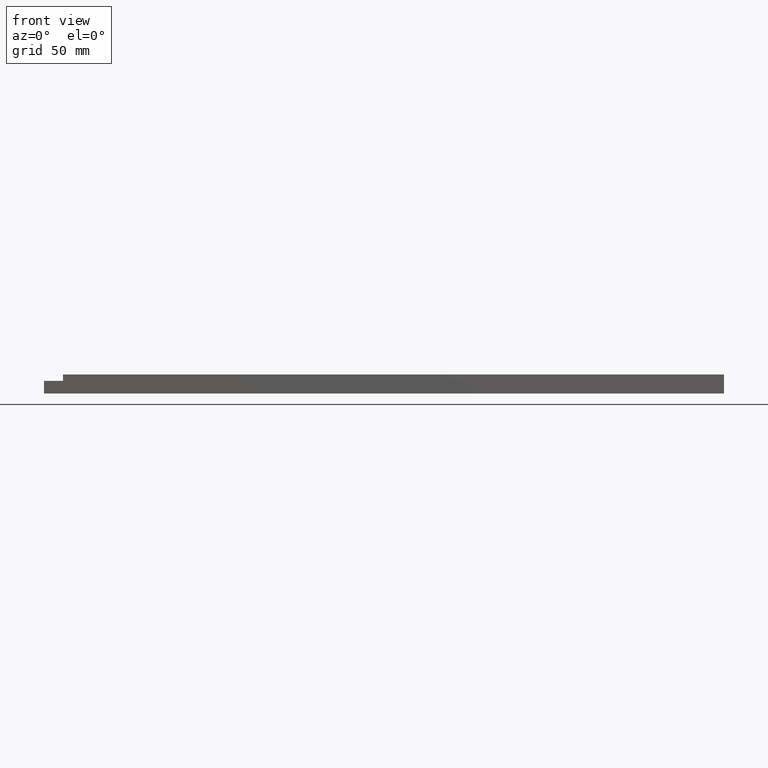
[diagram: clean part render]
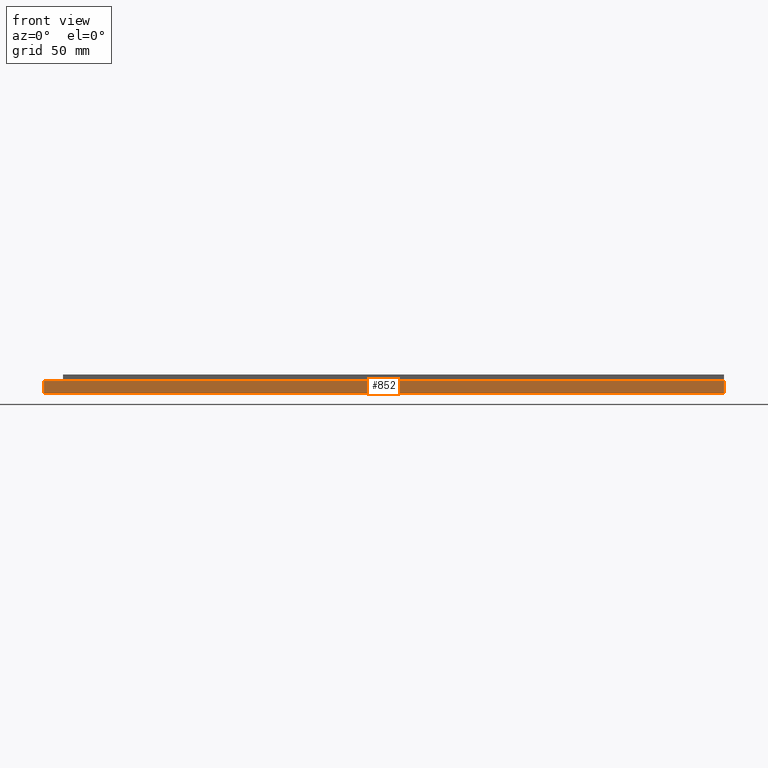
[diagram: same view with one face highlighted and labeled with its STEP entity id]
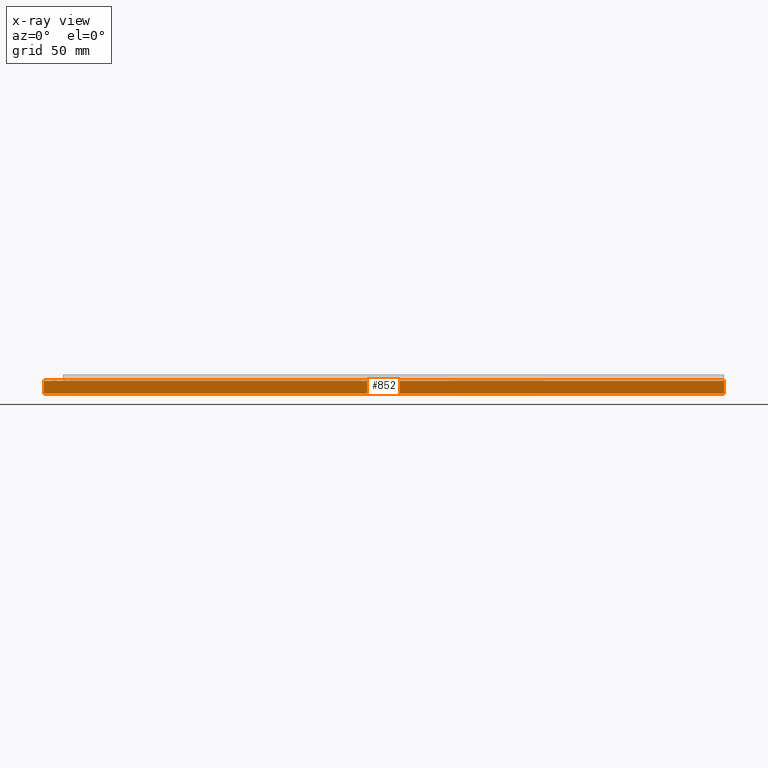
[diagram: x-ray of the same camera — body ghosted, the highlighted face saturated]
A machine part, front view. The second image highlights one B-rep face of the part: STEP entity #852.
The next image is the same camera in x-ray: the body ghosted, the highlighted face saturated — about 0% of this face is hidden behind the body in this view.
In plain terms, the highlighted planar face has unit normal (0, 1, 0).
Its self-contained STEP definition (entity closure, byte-faithful):
#11 = EDGE_CURVE ( 'NONE', #146, #1220, #1095, .T. ) ;
#42 = VECTOR ( 'NONE', #977, 1000.000000000000000 ) ;
#73 = VECTOR ( 'NONE', #549, 1000.000000000000000 ) ;
#87 = ORIENTED_EDGE ( 'NONE', *, *, #514, .T. ) ;
#146 = VERTEX_POINT ( 'NONE', #917 ) ;
#185 = LINE ( 'NONE', #364, #872 ) ;
#191 = EDGE_LOOP ( 'NONE', ( #450, #834, #679, #87 ) ) ;
#258 = DIRECTION ( 'NONE',  ( 0.0000000000000000000, -0.0000000000000000000, 1.000000000000000000 ) ) ;
#304 = AXIS2_PLACEMENT_3D ( 'NONE', #607, #1207, #258 ) ;
#364 = CARTESIAN_POINT ( 'NONE',  ( -215.0000000000000000, -84.99999999999998600, 2.000000000000000000 ) ) ;
#373 = DIRECTION ( 'NONE',  ( 1.000000000000000000, 0.0000000000000000000, 0.0000000000000000000 ) ) ;
#450 = ORIENTED_EDGE ( 'NONE', *, *, #899, .F. ) ;
#514 = EDGE_CURVE ( 'NONE', #1220, #933, #978, .T. ) ;
#549 = DIRECTION ( 'NONE',  ( -0.0000000000000000000, -0.0000000000000000000, -1.000000000000000000 ) ) ;
#607 = CARTESIAN_POINT ( 'NONE',  ( -215.0000000000000000, -84.99999999999998600, 6.000000000000000000 ) ) ;
#679 = ORIENTED_EDGE ( 'NONE', *, *, #11, .T. ) ;
#694 = CARTESIAN_POINT ( 'NONE',  ( 214.9999999999999400, -84.99999999999998600, -6.000000000000000000 ) ) ;
#714 = PLANE ( 'NONE',  #304 ) ;
#746 = CARTESIAN_POINT ( 'NONE',  ( -215.0000000000000000, -84.99999999999998600, -6.000000000000000000 ) ) ;
#834 = ORIENTED_EDGE ( 'NONE', *, *, #947, .F. ) ;
#852 = ADVANCED_FACE ( 'NONE', ( #867 ), #714, .F. ) ;
#855 = DIRECTION ( 'NONE',  ( 1.000000000000000000, 0.0000000000000000000, 0.0000000000000000000 ) ) ;
#867 = FACE_OUTER_BOUND ( 'NONE', #191, .T. ) ;
#872 = VECTOR ( 'NONE', #373, 1000.000000000000000 ) ;
#899 = EDGE_CURVE ( 'NONE', #1217, #933, #1087, .T. ) ;
#917 = CARTESIAN_POINT ( 'NONE',  ( -215.0000000000000000, -84.99999999999998600, 2.000000000000000000 ) ) ;
#924 = CARTESIAN_POINT ( 'NONE',  ( -215.0000000000000000, -84.99999999999998600, -6.000000000000000000 ) ) ;
#933 = VERTEX_POINT ( 'NONE', #694 ) ;
#947 = EDGE_CURVE ( 'NONE', #146, #1217, #185, .T. ) ;
#977 = DIRECTION ( 'NONE',  ( -0.0000000000000000000, -0.0000000000000000000, -1.000000000000000000 ) ) ;
#978 = LINE ( 'NONE', #924, #996 ) ;
#982 = CARTESIAN_POINT ( 'NONE',  ( 214.9999999999999400, -84.99999999999998600, 6.000000000000000000 ) ) ;
#996 = VECTOR ( 'NONE', #855, 1000.000000000000000 ) ;
#1087 = LINE ( 'NONE', #982, #42 ) ;
#1095 = LINE ( 'NONE', #1246, #73 ) ;
#1152 = CARTESIAN_POINT ( 'NONE',  ( 214.9999999999999400, -84.99999999999998600, 2.000000000000000000 ) ) ;
#1207 = DIRECTION ( 'NONE',  ( 0.0000000000000000000, 1.000000000000000000, 0.0000000000000000000 ) ) ;
#1217 = VERTEX_POINT ( 'NONE', #1152 ) ;
#1220 = VERTEX_POINT ( 'NONE', #746 ) ;
#1246 = CARTESIAN_POINT ( 'NONE',  ( -215.0000000000000000, -84.99999999999998600, 6.000000000000000000 ) ) ;